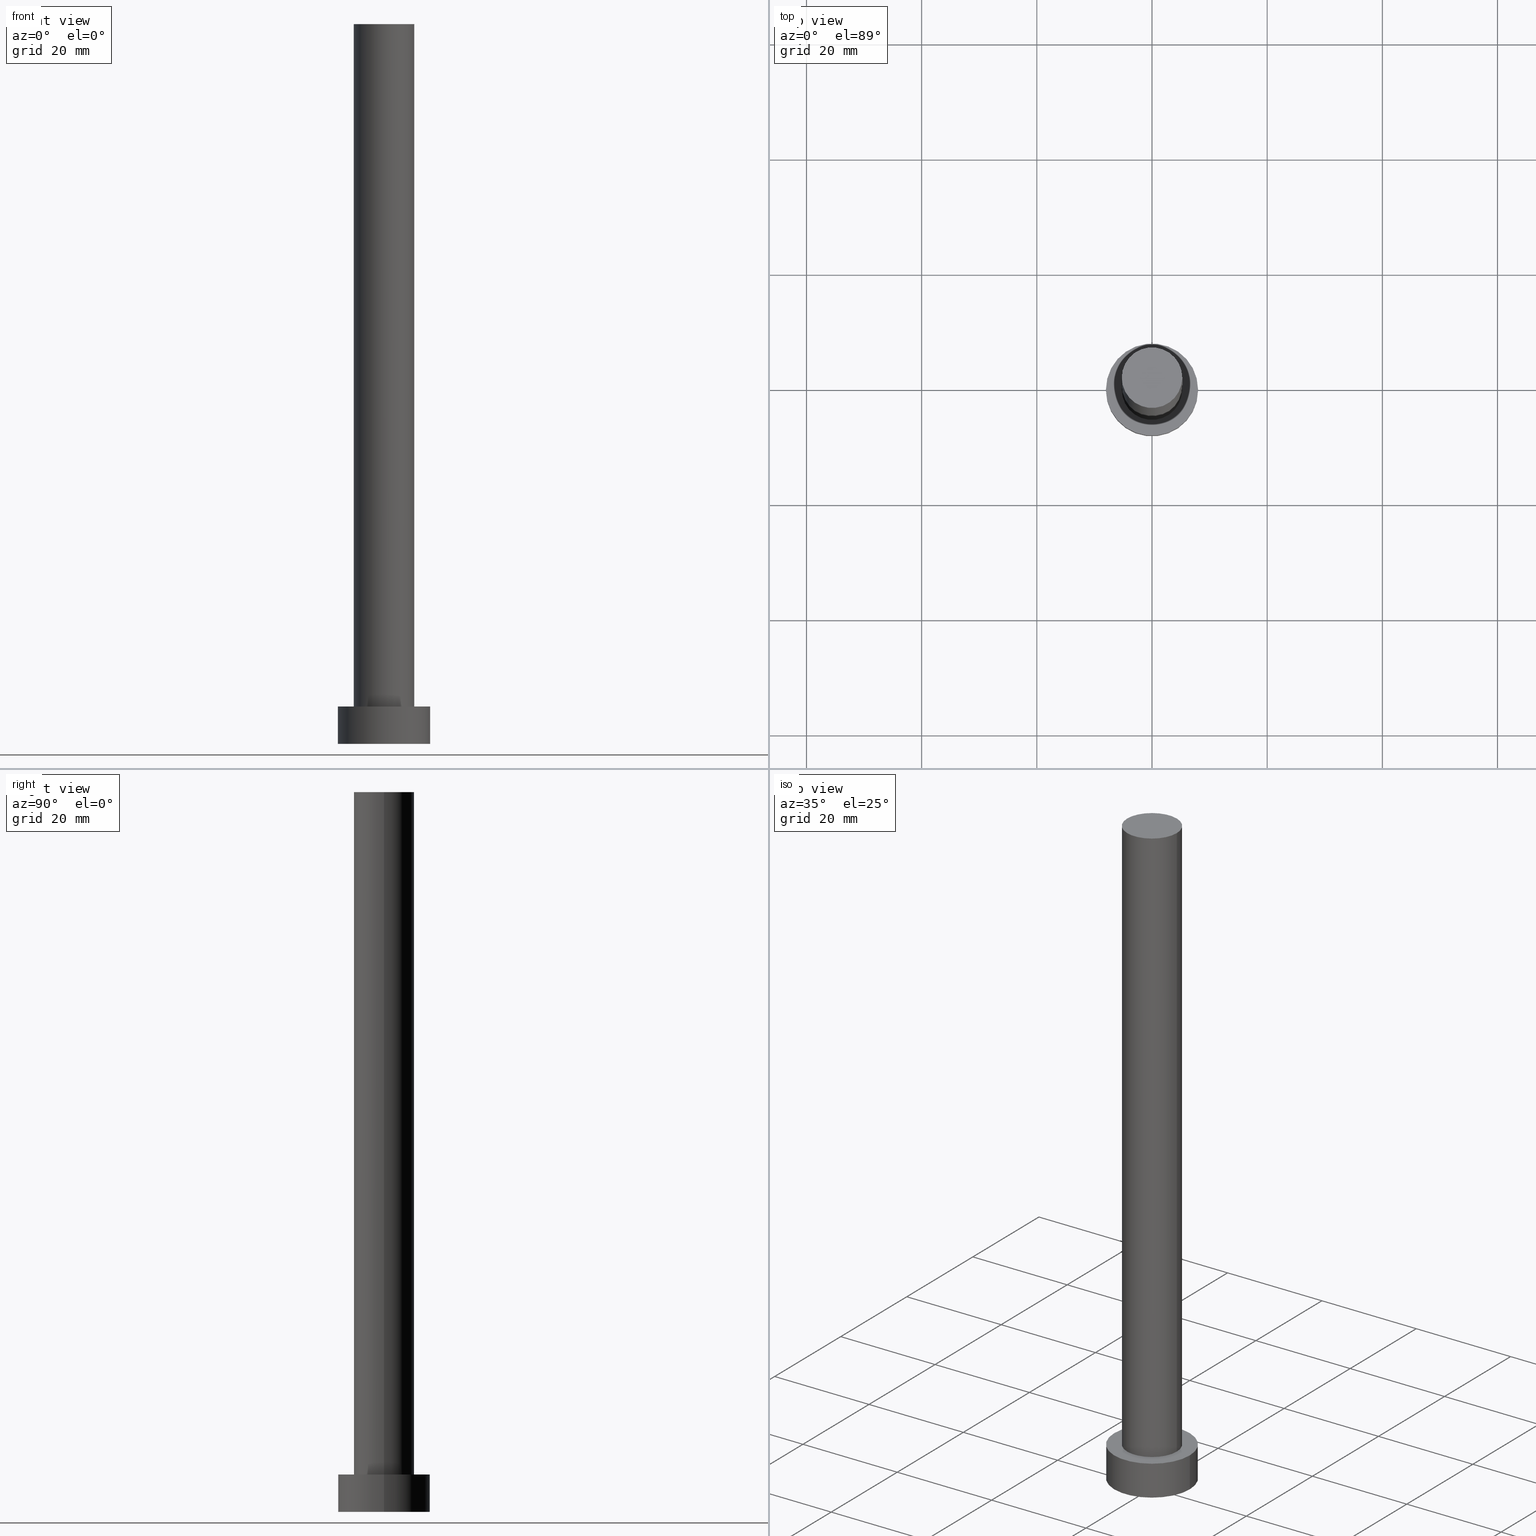
[diagram: canonical four-view strip — front | top / right | iso, engineering-drawing reading convention]
A machine part, canonical four-view strip (front | top / right | iso — engineering-drawing reading convention). The complete STEP part file that produces these views, byte-faithful:
ISO-10303-21;
HEADER;
FILE_DESCRIPTION (( 'STEP AP203' ),
    '1' );
FILE_NAME ('01e2.STEP',
    '2023-02-13T12:22:53',
    ( '' ),
    ( '' ),
    'SwSTEP 2.0',
    'SolidWorks 2019',
    '' );
FILE_SCHEMA (( 'CONFIG_CONTROL_DESIGN' ));
ENDSEC;

DATA;
#1 = DATE_AND_TIME ( #176, #239 ) ;
#2 = CALENDAR_DATE ( 2023, 13, 2 ) ;
#3 = PERSON_AND_ORGANIZATION ( #133, #170 ) ;
#4 = VECTOR ( 'NONE', #113, 1000.000000000000000 ) ;
#5 = COORDINATED_UNIVERSAL_TIME_OFFSET ( 1, 0, .AHEAD. ) ;
#6 = AXIS2_PLACEMENT_3D ( 'NONE', #17, #231, #73 ) ;
#7 = ORIENTED_EDGE ( 'NONE', *, *, #212, .T. ) ;
#8 = EDGE_LOOP ( 'NONE', ( #150, #25, #7, #68 ) ) ;
#9 = CC_DESIGN_PERSON_AND_ORGANIZATION_ASSIGNMENT ( #138, #20, ( #255 ) ) ;
#10 = ADVANCED_FACE ( 'NONE', ( #153 ), #169, .T. ) ;
#11 = MANIFOLD_SOLID_BREP ( 'P�idat vysunut�m3', #192 ) ;
#12 = CARTESIAN_POINT ( 'NONE',  ( 5.250000000000000888, 6.429395695523605139E-16, 125.0000000000000000 ) ) ;
#13 = DIRECTION ( 'NONE',  ( -0.000000000000000000, -0.000000000000000000, -1.000000000000000000 ) ) ;
#14 = CC_DESIGN_SECURITY_CLASSIFICATION ( #216, ( #234 ) ) ;
#15 = CARTESIAN_POINT ( 'NONE',  ( 8.000000000000000000, 9.797174393178823685E-16, 6.500000000000000000 ) ) ;
#16 = DIRECTION ( 'NONE',  ( 1.000000000000000000, 0.000000000000000000, 0.000000000000000000 ) ) ;
#17 = CARTESIAN_POINT ( 'NONE',  ( 0.000000000000000000, 0.000000000000000000, 6.500000000000000000 ) ) ;
#18 =( NAMED_UNIT ( * ) PLANE_ANGLE_UNIT ( ) SI_UNIT ( $, .RADIAN. ) );
#19 = APPLICATION_PROTOCOL_DEFINITION ( 'international standard', 'config_control_design', 1994, #161 ) ;
#20 = PERSON_AND_ORGANIZATION_ROLE ( 'creator' ) ;
#21 = PERSON_AND_ORGANIZATION ( #133, #170 ) ;
#22 = CIRCLE ( 'NONE', #253, 5.250000000000000888 ) ;
#23 = VERTEX_POINT ( 'NONE', #12 ) ;
#24 = SHAPE_DEFINITION_REPRESENTATION ( #45, #215 ) ;
#25 = ORIENTED_EDGE ( 'NONE', *, *, #137, .T. ) ;
#26 = AXIS2_PLACEMENT_3D ( 'NONE', #132, #174, #248 ) ;
#27 = VERTEX_POINT ( 'NONE', #130 ) ;
#28 = CYLINDRICAL_SURFACE ( 'NONE', #160, 5.250000000000000888 ) ;
#29 = CARTESIAN_POINT ( 'NONE',  ( 0.000000000000000000, 0.000000000000000000, 6.500000000000000000 ) ) ;
#30 = CARTESIAN_POINT ( 'NONE',  ( 0.000000000000000000, 0.000000000000000000, 125.0000000000000000 ) ) ;
#31 = CIRCLE ( 'NONE', #26, 8.000000000000000000 ) ;
#32 = ADVANCED_FACE ( 'NONE', ( #108 ), #72, .T. ) ;
#33 = CARTESIAN_POINT ( 'NONE',  ( -5.250000000000000888, 0.000000000000000000, 125.0000000000000000 ) ) ;
#34 = DIRECTION ( 'NONE',  ( -0.000000000000000000, -0.000000000000000000, -1.000000000000000000 ) ) ;
#35 = CARTESIAN_POINT ( 'NONE',  ( -8.000000000000000000, 0.000000000000000000, 6.500000000000000000 ) ) ;
#36 = VECTOR ( 'NONE', #87, 1000.000000000000000 ) ;
#37 = APPROVAL_PERSON_ORGANIZATION ( #118, #155, #97 ) ;
#38 = DIRECTION ( 'NONE',  ( 1.000000000000000000, 0.000000000000000000, -0.000000000000000000 ) ) ;
#39 = EDGE_CURVE ( 'NONE', #244, #129, #82, .T. ) ;
#40 = AXIS2_PLACEMENT_3D ( 'NONE', #131, #55, #90 ) ;
#41 = EDGE_CURVE ( 'NONE', #123, #165, #142, .T. ) ;
#42 = DATE_AND_TIME ( #85, #210 ) ;
#43 = EDGE_CURVE ( 'NONE', #27, #229, #91, .T. ) ;
#44 = ORIENTED_EDGE ( 'NONE', *, *, #39, .T. ) ;
#45 = PRODUCT_DEFINITION_SHAPE ( 'NONE', 'NONE',  #255 ) ;
#46 = COORDINATED_UNIVERSAL_TIME_OFFSET ( 1, 0, .AHEAD. ) ;
#47 = ORIENTED_EDGE ( 'NONE', *, *, #83, .T. ) ;
#48 = EDGE_LOOP ( 'NONE', ( #49, #67 ) ) ;
#49 = ORIENTED_EDGE ( 'NONE', *, *, #246, .T. ) ;
#50 = FACE_OUTER_BOUND ( 'NONE', #48, .T. ) ;
#51 = CARTESIAN_POINT ( 'NONE',  ( 0.000000000000000000, 0.000000000000000000, 6.500000000000000000 ) ) ;
#52 = CARTESIAN_POINT ( 'NONE',  ( 8.000000000000000000, 9.797174393178823685E-16, 6.500000000000000000 ) ) ;
#53 = CC_DESIGN_PERSON_AND_ORGANIZATION_ASSIGNMENT ( #21, #99, ( #216 ) ) ;
#54 = CARTESIAN_POINT ( 'NONE',  ( 0.000000000000000000, 0.000000000000000000, 0.000000000000000000 ) ) ;
#55 = DIRECTION ( 'NONE',  ( 0.000000000000000000, 0.000000000000000000, 1.000000000000000000 ) ) ;
#56 = PERSON_AND_ORGANIZATION_ROLE ( 'design_owner' ) ;
#57 = DIRECTION ( 'NONE',  ( 0.000000000000000000, 0.000000000000000000, 1.000000000000000000 ) ) ;
#58 = CIRCLE ( 'NONE', #120, 8.000000000000000000 ) ;
#59 = DIRECTION ( 'NONE',  ( 1.000000000000000000, 0.000000000000000000, 0.000000000000000000 ) ) ;
#60 = APPROVAL ( #101, 'NEUR�EN�' ) ;
#61 = APPROVAL_DATE_TIME ( #1, #199 ) ;
#62 = CC_DESIGN_PERSON_AND_ORGANIZATION_ASSIGNMENT ( #3, #103, ( #234 ) ) ;
#63 = CARTESIAN_POINT ( 'NONE',  ( 0.000000000000000000, 0.000000000000000000, 125.0000000000000000 ) ) ;
#64 = AXIS2_PLACEMENT_3D ( 'NONE', #92, #151, #88 ) ;
#65 = PERSON_AND_ORGANIZATION_ROLE ( 'design_supplier' ) ;
#66 = DATE_AND_TIME ( #207, #105 ) ;
#67 = ORIENTED_EDGE ( 'NONE', *, *, #164, .T. ) ;
#68 = ORIENTED_EDGE ( 'NONE', *, *, #252, .F. ) ;
#69 = LOCAL_TIME ( 13, 22, 53.00000000000000000, #158 ) ;
#70 = CIRCLE ( 'NONE', #217, 5.250000000000000888 ) ;
#71 = ORIENTED_EDGE ( 'NONE', *, *, #39, .F. ) ;
#72 = CYLINDRICAL_SURFACE ( 'NONE', #119, 5.250000000000000888 ) ;
#73 = DIRECTION ( 'NONE',  ( -1.000000000000000000, 0.000000000000000000, 0.000000000000000000 ) ) ;
#74 = CC_DESIGN_DATE_AND_TIME_ASSIGNMENT ( #141, #222, ( #255 ) ) ;
#75 = FACE_OUTER_BOUND ( 'NONE', #205, .T. ) ;
#76 = CARTESIAN_POINT ( 'NONE',  ( 5.250000000000000888, 6.429395695523605139E-16, 125.0000000000000000 ) ) ;
#77 = DESIGN_CONTEXT ( 'detailed design', #161, 'design' ) ;
#78 = LINE ( 'NONE', #52, #114 ) ;
#79 = COORDINATED_UNIVERSAL_TIME_OFFSET ( 1, 0, .AHEAD. ) ;
#80 =( NAMED_UNIT ( * ) SI_UNIT ( $, .STERADIAN. ) SOLID_ANGLE_UNIT ( ) );
#81 = LOCAL_TIME ( 13, 22, 53.00000000000000000, #181 ) ;
#82 = CIRCLE ( 'NONE', #227, 8.000000000000000000 ) ;
#83 = EDGE_CURVE ( 'NONE', #129, #244, #31, .T. ) ;
#84 =( LENGTH_UNIT ( ) NAMED_UNIT ( * ) SI_UNIT ( .MILLI., .METRE. ) );
#85 = CALENDAR_DATE ( 2023, 13, 2 ) ;
#86 = PERSON_AND_ORGANIZATION ( #133, #170 ) ;
#87 = DIRECTION ( 'NONE',  ( -0.000000000000000000, -0.000000000000000000, -1.000000000000000000 ) ) ;
#88 = DIRECTION ( 'NONE',  ( 1.000000000000000000, 0.000000000000000000, 0.000000000000000000 ) ) ;
#89 = CIRCLE ( 'NONE', #191, 5.250000000000000888 ) ;
#90 = DIRECTION ( 'NONE',  ( 1.000000000000000000, 0.000000000000000000, -0.000000000000000000 ) ) ;
#91 = LINE ( 'NONE', #33, #36 ) ;
#92 = CARTESIAN_POINT ( 'NONE',  ( 0.000000000000000000, 0.000000000000000000, 125.0000000000000000 ) ) ;
#93 = APPROVAL_STATUS ( 'not_yet_approved' ) ;
#94 = DIRECTION ( 'NONE',  ( 1.000000000000000000, 0.000000000000000000, 0.000000000000000000 ) ) ;
#95 = ADVANCED_FACE ( 'NONE', ( #193 ), #232, .F. ) ;
#96 = CARTESIAN_POINT ( 'NONE',  ( 0.000000000000000000, 0.000000000000000000, 0.000000000000000000 ) ) ;
#97 = APPROVAL_ROLE ( '' ) ;
#98 = DIRECTION ( 'NONE',  ( -0.000000000000000000, -0.000000000000000000, -1.000000000000000000 ) ) ;
#99 = PERSON_AND_ORGANIZATION_ROLE ( 'classification_officer' ) ;
#100 = AXIS2_PLACEMENT_3D ( 'NONE', #219, #235, #233 ) ;
#101 = APPROVAL_STATUS ( 'not_yet_approved' ) ;
#102 = ORIENTED_EDGE ( 'NONE', *, *, #237, .T. ) ;
#103 = PERSON_AND_ORGANIZATION_ROLE ( 'creator' ) ;
#104 = CC_DESIGN_PERSON_AND_ORGANIZATION_ASSIGNMENT ( #198, #56, ( #236 ) ) ;
#105 = LOCAL_TIME ( 13, 22, 53.00000000000000000, #46 ) ;
#106 = ORIENTED_EDGE ( 'NONE', *, *, #212, .F. ) ;
#107 = CARTESIAN_POINT ( 'NONE',  ( 0.000000000000000000, 0.000000000000000000, 125.0000000000000000 ) ) ;
#108 = FACE_OUTER_BOUND ( 'NONE', #209, .T. ) ;
#109 = APPROVAL_PERSON_ORGANIZATION ( #86, #60, #245 ) ;
#110 = CARTESIAN_POINT ( 'NONE',  ( -8.000000000000000000, 0.000000000000000000, 0.000000000000000000 ) ) ;
#111 = DIRECTION ( 'NONE',  ( 0.000000000000000000, 0.000000000000000000, 1.000000000000000000 ) ) ;
#112 = EDGE_CURVE ( 'NONE', #229, #247, #70, .T. ) ;
#113 = DIRECTION ( 'NONE',  ( -0.000000000000000000, -0.000000000000000000, -1.000000000000000000 ) ) ;
#114 = VECTOR ( 'NONE', #34, 1000.000000000000000 ) ;
#115 = VECTOR ( 'NONE', #98, 1000.000000000000000 ) ;
#116 = ADVANCED_FACE ( 'NONE', ( #213 ), #28, .T. ) ;
#117 = CARTESIAN_POINT ( 'NONE',  ( -8.000000000000000000, 0.000000000000000000, 6.500000000000000000 ) ) ;
#118 = PERSON_AND_ORGANIZATION ( #133, #170 ) ;
#119 = AXIS2_PLACEMENT_3D ( 'NONE', #30, #194, #188 ) ;
#120 = AXIS2_PLACEMENT_3D ( 'NONE', #96, #177, #94 ) ;
#121 = DIRECTION ( 'NONE',  ( 0.000000000000000000, 0.000000000000000000, 1.000000000000000000 ) ) ;
#122 = APPROVAL_DATE_TIME ( #204, #155 ) ;
#123 = VERTEX_POINT ( 'NONE', #110 ) ;
#124 = ORIENTED_EDGE ( 'NONE', *, *, #164, .F. ) ;
#125 = CC_DESIGN_APPROVAL ( #60, ( #216 ) ) ;
#126 = APPROVAL_DATE_TIME ( #66, #60 ) ;
#127 = CC_DESIGN_DATE_AND_TIME_ASSIGNMENT ( #42, #162, ( #216 ) ) ;
#128 = ORIENTED_EDGE ( 'NONE', *, *, #43, .T. ) ;
#129 = VERTEX_POINT ( 'NONE', #15 ) ;
#130 = CARTESIAN_POINT ( 'NONE',  ( -5.250000000000000888, 0.000000000000000000, 125.0000000000000000 ) ) ;
#131 = CARTESIAN_POINT ( 'NONE',  ( 0.000000000000000000, 0.000000000000000000, 6.500000000000000000 ) ) ;
#132 = CARTESIAN_POINT ( 'NONE',  ( 0.000000000000000000, 0.000000000000000000, 6.500000000000000000 ) ) ;
#133 = PERSON ( 'NEUR�EN�', 'NEUR�EN�', 'NEUR�EN�', ('NEUR�EN�'), ('NEUR�EN�'), ('NEUR�EN�') ) ;
#134 = LINE ( 'NONE', #76, #4 ) ;
#135 = APPLICATION_CONTEXT ( 'configuration controlled 3d designs of mechanical parts and assemblies' ) ;
#136 = PERSON_AND_ORGANIZATION ( #133, #170 ) ;
#137 = EDGE_CURVE ( 'NONE', #129, #165, #78, .T. ) ;
#138 = PERSON_AND_ORGANIZATION ( #133, #170 ) ;
#139 = AXIS2_PLACEMENT_3D ( 'NONE', #249, #242, #38 ) ;
#140 = LINE ( 'NONE', #35, #115 ) ;
#141 = DATE_AND_TIME ( #221, #69 ) ;
#142 = CIRCLE ( 'NONE', #167, 8.000000000000000000 ) ;
#143 = ORIENTED_EDGE ( 'NONE', *, *, #41, .F. ) ;
#144 = ORIENTED_EDGE ( 'NONE', *, *, #41, .T. ) ;
#145 = ADVANCED_FACE ( 'NONE', ( #156, #75 ), #250, .T. ) ;
#146 = EDGE_CURVE ( 'NONE', #23, #247, #134, .T. ) ;
#147 = ORIENTED_EDGE ( 'NONE', *, *, #112, .F. ) ;
#148 =( GEOMETRIC_REPRESENTATION_CONTEXT ( 3 ) GLOBAL_UNCERTAINTY_ASSIGNED_CONTEXT ( ( #182 ) ) GLOBAL_UNIT_ASSIGNED_CONTEXT ( ( #84, #18, #80 ) ) REPRESENTATION_CONTEXT ( 'NONE', 'WORKASPACE' ) );
#149 = EDGE_LOOP ( 'NONE', ( #147, #243 ) ) ;
#150 = ORIENTED_EDGE ( 'NONE', *, *, #83, .F. ) ;
#151 = DIRECTION ( 'NONE',  ( 0.000000000000000000, 0.000000000000000000, 1.000000000000000000 ) ) ;
#152 = CARTESIAN_POINT ( 'NONE',  ( 0.000000000000000000, 0.000000000000000000, 6.500000000000000000 ) ) ;
#153 = FACE_OUTER_BOUND ( 'NONE', #168, .T. ) ;
#154 = CYLINDRICAL_SURFACE ( 'NONE', #6, 8.000000000000000000 ) ;
#155 = APPROVAL ( #200, 'NEUR�EN�' ) ;
#156 = FACE_BOUND ( 'NONE', #149, .T. ) ;
#157 = CARTESIAN_POINT ( 'NONE',  ( 0.000000000000000000, 0.000000000000000000, 6.500000000000000000 ) ) ;
#158 = COORDINATED_UNIVERSAL_TIME_OFFSET ( 1, 0, .AHEAD. ) ;
#159 = DIRECTION ( 'NONE',  ( 1.000000000000000000, 0.000000000000000000, 0.000000000000000000 ) ) ;
#160 = AXIS2_PLACEMENT_3D ( 'NONE', #107, #13, #251 ) ;
#161 = APPLICATION_CONTEXT ( 'configuration controlled 3d designs of mechanical parts and assemblies' ) ;
#162 = DATE_TIME_ROLE ( 'classification_date' ) ;
#163 = ADVANCED_FACE ( 'NONE', ( #175 ), #154, .T. ) ;
#164 = EDGE_CURVE ( 'NONE', #23, #27, #206, .T. ) ;
#165 = VERTEX_POINT ( 'NONE', #230 ) ;
#166 = SECURITY_CLASSIFICATION_LEVEL ( 'unclassified' ) ;
#167 = AXIS2_PLACEMENT_3D ( 'NONE', #54, #171, #173 ) ;
#168 = EDGE_LOOP ( 'NONE', ( #228, #71, #184, #144 ) ) ;
#169 = CYLINDRICAL_SURFACE ( 'NONE', #238, 8.000000000000000000 ) ;
#170 = ORGANIZATION ( 'NEUR�EN�', 'NEUR�EN�', '' ) ;
#171 = DIRECTION ( 'NONE',  ( 0.000000000000000000, 0.000000000000000000, 1.000000000000000000 ) ) ;
#172 = CC_DESIGN_PERSON_AND_ORGANIZATION_ASSIGNMENT ( #225, #65, ( #234 ) ) ;
#173 = DIRECTION ( 'NONE',  ( 1.000000000000000000, 0.000000000000000000, 0.000000000000000000 ) ) ;
#174 = DIRECTION ( 'NONE',  ( 0.000000000000000000, 0.000000000000000000, 1.000000000000000000 ) ) ;
#175 = FACE_OUTER_BOUND ( 'NONE', #8, .T. ) ;
#176 = CALENDAR_DATE ( 2023, 13, 2 ) ;
#177 = DIRECTION ( 'NONE',  ( 0.000000000000000000, 0.000000000000000000, 1.000000000000000000 ) ) ;
#178 = APPLICATION_PROTOCOL_DEFINITION ( 'international standard', 'config_control_design', 1994, #135 ) ;
#179 = CC_DESIGN_APPROVAL ( #199, ( #255 ) ) ;
#180 = PRODUCT_RELATED_PRODUCT_CATEGORY ( 'detail', '', ( #236 ) ) ;
#181 = COORDINATED_UNIVERSAL_TIME_OFFSET ( 1, 0, .AHEAD. ) ;
#182 = UNCERTAINTY_MEASURE_WITH_UNIT (LENGTH_MEASURE( 1.000000000000000082E-05 ), #84, 'distance_accuracy_value', 'NONE');
#183 = EDGE_LOOP ( 'NONE', ( #124, #224, #102, #185 ) ) ;
#184 = ORIENTED_EDGE ( 'NONE', *, *, #252, .T. ) ;
#185 = ORIENTED_EDGE ( 'NONE', *, *, #43, .F. ) ;
#186 = ORIENTED_EDGE ( 'NONE', *, *, #146, .F. ) ;
#187 = ORIENTED_EDGE ( 'NONE', *, *, #246, .F. ) ;
#188 = DIRECTION ( 'NONE',  ( -1.000000000000000000, 0.000000000000000000, 0.000000000000000000 ) ) ;
#189 = DIRECTION ( 'NONE',  ( 1.000000000000000000, 0.000000000000000000, 0.000000000000000000 ) ) ;
#190 = ADVANCED_FACE ( 'NONE', ( #50 ), #211, .T. ) ;
#191 = AXIS2_PLACEMENT_3D ( 'NONE', #157, #196, #202 ) ;
#192 = CLOSED_SHELL ( 'NONE', ( #116, #163, #10, #145, #95, #32, #190 ) ) ;
#193 = FACE_OUTER_BOUND ( 'NONE', #203, .T. ) ;
#194 = DIRECTION ( 'NONE',  ( -0.000000000000000000, -0.000000000000000000, -1.000000000000000000 ) ) ;
#195 = DIRECTION ( 'NONE',  ( 0.000000000000000000, 0.000000000000000000, 1.000000000000000000 ) ) ;
#196 = DIRECTION ( 'NONE',  ( 0.000000000000000000, 0.000000000000000000, 1.000000000000000000 ) ) ;
#197 = CARTESIAN_POINT ( 'NONE',  ( 5.250000000000000888, 6.429395695523605139E-16, 6.500000000000000000 ) ) ;
#198 = PERSON_AND_ORGANIZATION ( #133, #170 ) ;
#199 = APPROVAL ( #93, 'NEUR�EN�' ) ;
#200 = APPROVAL_STATUS ( 'not_yet_approved' ) ;
#201 = APPROVAL_PERSON_ORGANIZATION ( #136, #199, #241 ) ;
#202 = DIRECTION ( 'NONE',  ( 1.000000000000000000, 0.000000000000000000, 0.000000000000000000 ) ) ;
#203 = EDGE_LOOP ( 'NONE', ( #143, #106 ) ) ;
#204 = DATE_AND_TIME ( #2, #81 ) ;
#205 = EDGE_LOOP ( 'NONE', ( #44, #47 ) ) ;
#206 = CIRCLE ( 'NONE', #64, 5.250000000000000888 ) ;
#207 = CALENDAR_DATE ( 2023, 13, 2 ) ;
#208 = ORIENTED_EDGE ( 'NONE', *, *, #112, .T. ) ;
#209 = EDGE_LOOP ( 'NONE', ( #186, #187, #128, #208 ) ) ;
#210 = LOCAL_TIME ( 13, 22, 53.00000000000000000, #5 ) ;
#211 = PLANE ( 'NONE',  #139 ) ;
#212 = EDGE_CURVE ( 'NONE', #165, #123, #58, .T. ) ;
#213 = FACE_OUTER_BOUND ( 'NONE', #183, .T. ) ;
#214 = DIRECTION ( 'NONE',  ( -1.000000000000000000, 0.000000000000000000, 0.000000000000000000 ) ) ;
#215 = ADVANCED_BREP_SHAPE_REPRESENTATION ( '01e2', ( #11, #226 ), #148 ) ;
#216 = SECURITY_CLASSIFICATION ( '', '', #166 ) ;
#217 = AXIS2_PLACEMENT_3D ( 'NONE', #51, #111, #189 ) ;
#218 = DIRECTION ( 'NONE',  ( -0.000000000000000000, -0.000000000000000000, -1.000000000000000000 ) ) ;
#219 = CARTESIAN_POINT ( 'NONE',  ( 0.000000000000000000, 0.000000000000000000, 0.000000000000000000 ) ) ;
#220 = CARTESIAN_POINT ( 'NONE',  ( -5.250000000000000888, 0.000000000000000000, 6.500000000000000000 ) ) ;
#221 = CALENDAR_DATE ( 2023, 13, 2 ) ;
#222 = DATE_TIME_ROLE ( 'creation_date' ) ;
#223 = CC_DESIGN_APPROVAL ( #155, ( #234 ) ) ;
#224 = ORIENTED_EDGE ( 'NONE', *, *, #146, .T. ) ;
#225 = PERSON_AND_ORGANIZATION ( #133, #170 ) ;
#226 = AXIS2_PLACEMENT_3D ( 'NONE', #240, #57, #59 ) ;
#227 = AXIS2_PLACEMENT_3D ( 'NONE', #152, #195, #16 ) ;
#228 = ORIENTED_EDGE ( 'NONE', *, *, #137, .F. ) ;
#229 = VERTEX_POINT ( 'NONE', #220 ) ;
#230 = CARTESIAN_POINT ( 'NONE',  ( 8.000000000000000000, 9.797174393178823685E-16, 0.000000000000000000 ) ) ;
#231 = DIRECTION ( 'NONE',  ( -0.000000000000000000, -0.000000000000000000, -1.000000000000000000 ) ) ;
#232 = PLANE ( 'NONE',  #100 ) ;
#233 = DIRECTION ( 'NONE',  ( 1.000000000000000000, 0.000000000000000000, -0.000000000000000000 ) ) ;
#234 = PRODUCT_DEFINITION_FORMATION_WITH_SPECIFIED_SOURCE ( 'LIBOVOLN�', '', #236, .NOT_KNOWN. ) ;
#235 = DIRECTION ( 'NONE',  ( 0.000000000000000000, 0.000000000000000000, 1.000000000000000000 ) ) ;
#236 = PRODUCT ( '01e2', '01e2', '', ( #254 ) ) ;
#237 = EDGE_CURVE ( 'NONE', #247, #229, #89, .T. ) ;
#238 = AXIS2_PLACEMENT_3D ( 'NONE', #29, #218, #214 ) ;
#239 = LOCAL_TIME ( 13, 22, 53.00000000000000000, #79 ) ;
#240 = CARTESIAN_POINT ( 'NONE',  ( 0.000000000000000000, 0.000000000000000000, 0.000000000000000000 ) ) ;
#241 = APPROVAL_ROLE ( '' ) ;
#242 = DIRECTION ( 'NONE',  ( 0.000000000000000000, 0.000000000000000000, 1.000000000000000000 ) ) ;
#243 = ORIENTED_EDGE ( 'NONE', *, *, #237, .F. ) ;
#244 = VERTEX_POINT ( 'NONE', #117 ) ;
#245 = APPROVAL_ROLE ( '' ) ;
#246 = EDGE_CURVE ( 'NONE', #27, #23, #22, .T. ) ;
#247 = VERTEX_POINT ( 'NONE', #197 ) ;
#248 = DIRECTION ( 'NONE',  ( 1.000000000000000000, 0.000000000000000000, 0.000000000000000000 ) ) ;
#249 = CARTESIAN_POINT ( 'NONE',  ( 0.000000000000000000, 0.000000000000000000, 125.0000000000000000 ) ) ;
#250 = PLANE ( 'NONE',  #40 ) ;
#251 = DIRECTION ( 'NONE',  ( -1.000000000000000000, 0.000000000000000000, 0.000000000000000000 ) ) ;
#252 = EDGE_CURVE ( 'NONE', #244, #123, #140, .T. ) ;
#253 = AXIS2_PLACEMENT_3D ( 'NONE', #63, #121, #159 ) ;
#254 = MECHANICAL_CONTEXT ( 'NONE', #135, 'mechanical' ) ;
#255 = PRODUCT_DEFINITION ( 'NEZN�M�', '', #234, #77 ) ;
ENDSEC;
END-ISO-10303-21;
